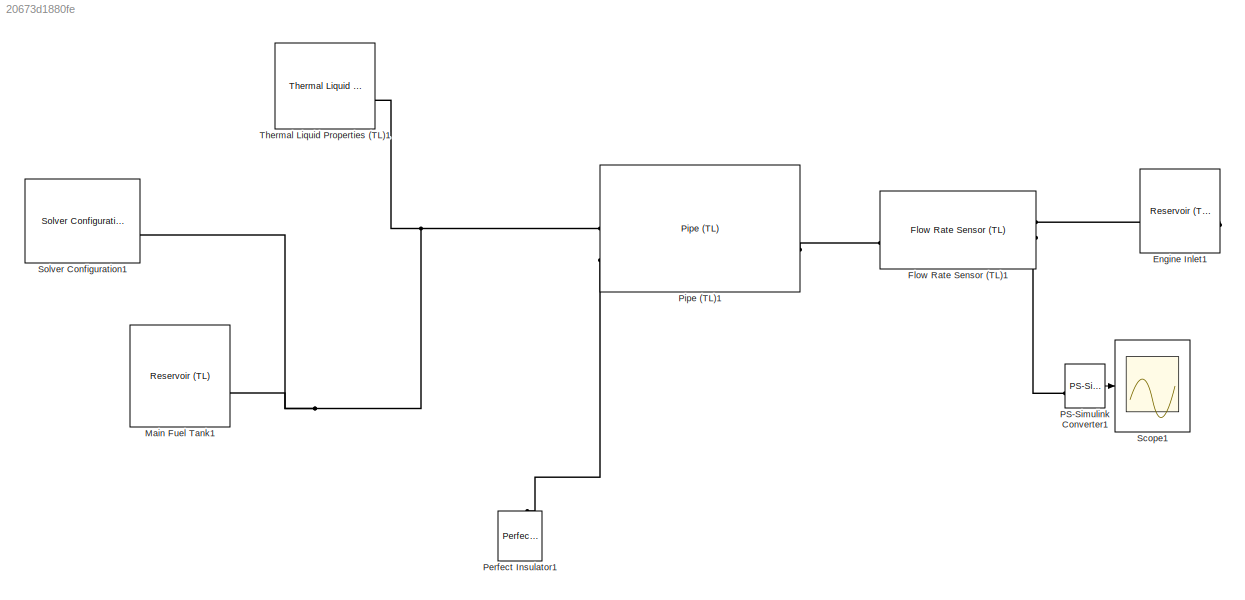
MODEL slx_20673d1880fe
KIND model
CONFIG AbsTol = auto
CONFIG EnableMultiTasking = off
CONFIG FixedStep = auto
CONFIG MaxStep = auto
CONFIG MinStep = auto
CONFIG RelTol = 1e-3
CONFIG SampleTimeConstraint = Unconstrained
CONFIG SolverName = VariableStepAuto
CONFIG StartTime = 0.0
CONFIG StopTime = 10.0
BLOCK [Reference] Engine Inlet1  REF=fl_lib/Thermal Liquid/Elements/Reservoir (TL)
  NameLocation = top
  SourceBlock = fl_lib/Thermal Liquid/Elements/Reservoir (TL)
  SourceType = Reservoir (TL)
BLOCK [Reference] Flow Rate Sensor (TL)1  REF=fl_lib/Thermal Liquid/Sensors/Flow Rate Sensor
(TL)
  SourceBlock = fl_lib/Thermal Liquid/Sensors/Flow Rate Sensor\n(TL)
  SourceType = Flow Rate Sensor\n(TL)
BLOCK [Reference] Main Fuel Tank1  REF=fl_lib/Thermal Liquid/Elements/Reservoir (TL)
  SourceBlock = fl_lib/Thermal Liquid/Elements/Reservoir (TL)
  SourceType = Reservoir (TL)
BLOCK [Reference] PS-Simulink Converter1  REF=nesl_utility/PS-Simulink
Converter
  SourceBlock = nesl_utility/PS-Simulink\nConverter
  SourceType = PS-Simulink\nConverter
BLOCK [Reference] Perfect Insulator1  REF=fl_lib/Thermal/Thermal Elements/Perfect Insulator
  NameLocation = right
  SourceBlock = fl_lib/Thermal/Thermal Elements/Perfect Insulator
  SourceType = Perfect Insulator
BLOCK [Reference] Pipe (TL)1  REF=SimscapeFluids_lib/Thermal Liquid/Pipes & Fittings/Pipe (TL)
  SourceBlock = SimscapeFluids_lib/Thermal Liquid/Pipes & Fittings/Pipe (TL)
  SourceType = Pipe (TL)
BLOCK [Scope] Scope1
  ActiveDisplayYMaximum = 4.36817993481992
  ActiveDisplayYMinimum = 2.6834101829851895
  ContainerLayout = {"WindowBounds":[1195,1371,338,757]}
  DataLoggingVariableName = ScopeData1
  Floating = off
  GraphicalSettings = {"Style":{"BackgroundColor":[0.12941176470588237,0.12941176470588237,0.12941176470588237],"AxesColor":[0.07058823529411765,0.07058823529411765,0.07058823529411765],"LabelsColor":[0.8509803921568627,0.8509803921568627,0.8509803921568627],"PreserveColors":false,"Visible":[true],"LineStyle":["-"],"LineWidth":[1.5],"BarWidth":[0.9],"LineColor":["auto"],"LineFaceAlpha":[1],"LineEdgeAlpha":[1],"Marker":...<+2052ch>
  MultipleDisplayCache = [{"MaxYLimMag":4.36817993481992,"MaxYLimReal":4.36817993481992,"MinYLimMag":2.6834101829851895,"MinYLimReal":2.6834101829851895,"PlotAsMagnitudePhase":false,"ShowGrid":true,"ShowLegend":false,"Title":"%<SignalLabel>","YLabel":""}]
  NumInputPorts = 1
  Visible = on
  WasSavedAsWebScope = on
  WindowPosition = [428.000000,3.000000,340.000000,759.000000,]
BLOCK [Reference] Solver Configuration1  REF=nesl_utility/Solver
Configuration
  SourceBlock = nesl_utility/Solver\nConfiguration
  SourceType = Solver\nConfiguration
BLOCK [Reference] Thermal Liquid Properties (TL)1  REF=SimscapeFluids_lib/Thermal Liquid/Utilities/Thermal Liquid
Properties (TL)
  SourceBlock = SimscapeFluids_lib/Thermal Liquid/Utilities/Thermal Liquid\nProperties (TL)
  SourceType = Thermal Liquid\nProperties (TL)
LINE PS-Simulink Converter1:1 -> Scope1:1
PLINE Engine Inlet1:LConn1 -- Flow Rate Sensor (TL)1:RConn1
PLINE Flow Rate Sensor (TL)1:LConn1 -- Pipe (TL)1:RConn1
PLINE Flow Rate Sensor (TL)1:RConn2 -- PS-Simulink Converter1:LConn1
PNET net1: Main Fuel Tank1:LConn1 -- Pipe (TL)1:LConn1 -- Solver Configuration1:RConn1 -- Thermal Liquid Properties (TL)1:RConn1
PLINE Perfect Insulator1:LConn1 -- Pipe (TL)1:LConn2
note: PNET lines group multi-terminal physical nets as a canonical sorted terminal list (undirected conserving connections); 2-terminal nets keep the pairwise PLINE form
